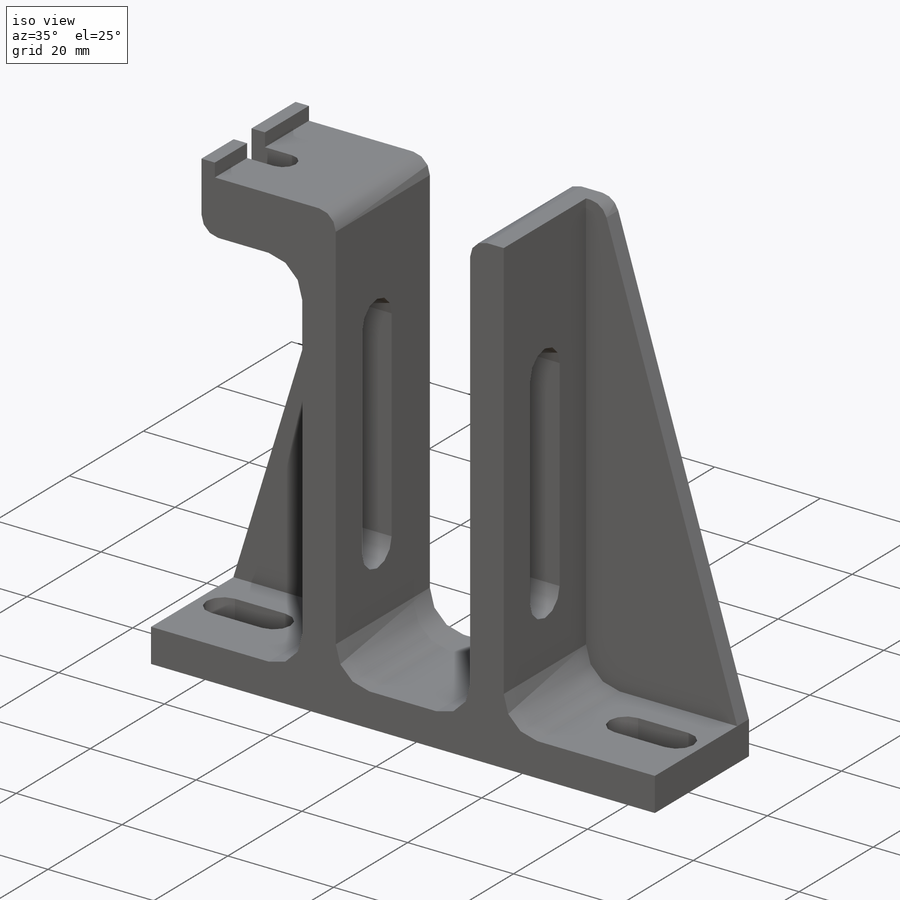
[diagram: iso view]
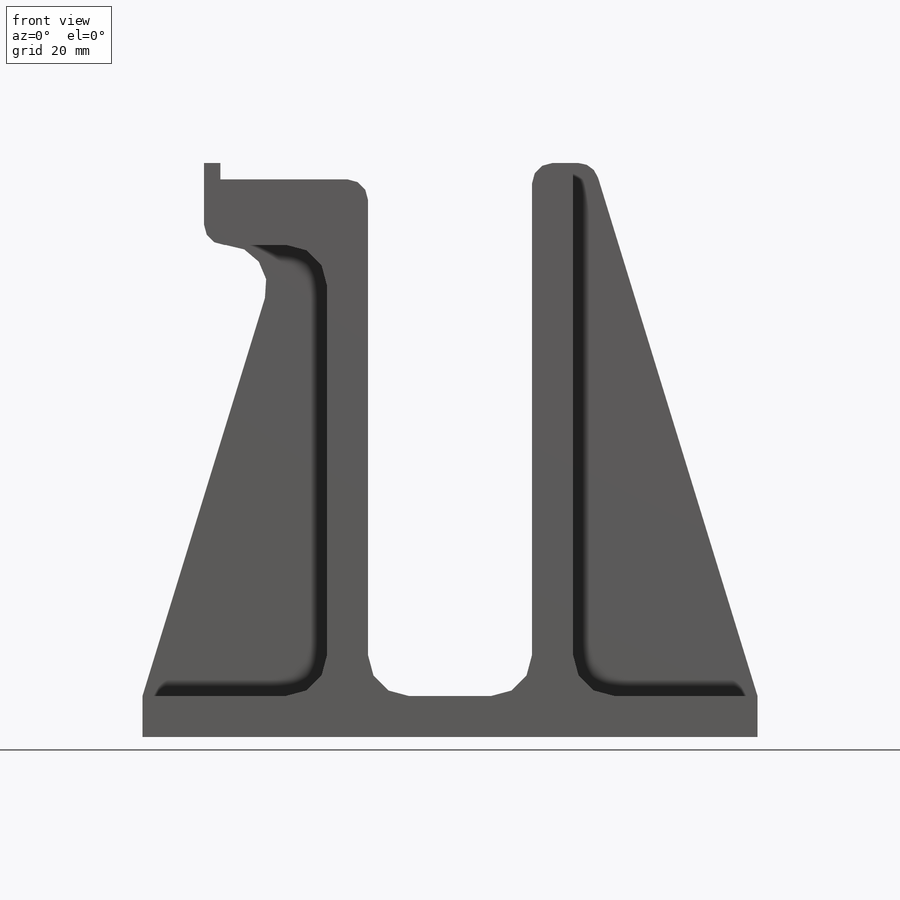
[diagram: front view]
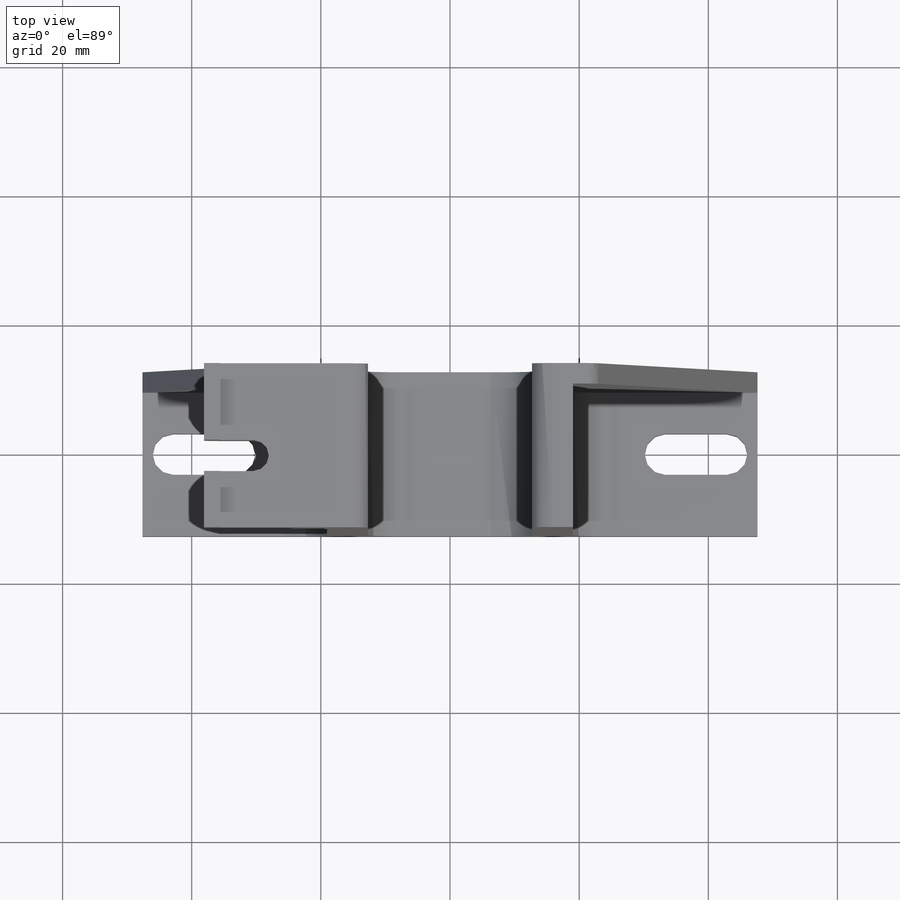
[diagram: top view]
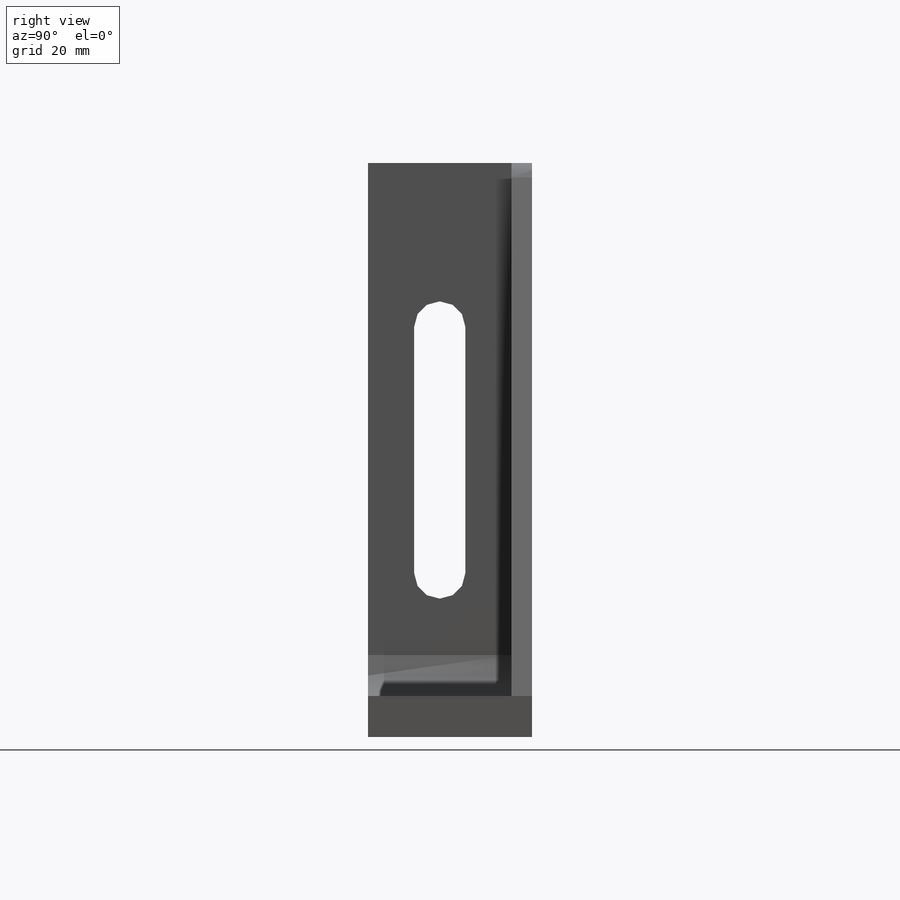
[diagram: right view]
SOLIDWORKS PART (.sldprt)
format: sldprt  version: not decoded by parser v0  size: 379,392 bytes
history: native  units: mm
features: sketch x7, cut_extrude x4, extrude x2, fillet x2, material x1, mirror x1 (+11 scaffold rows collapsed)
feature tree (28):
  scaffold x11  (default folders/planes/origin — collapsed)
  material  "6061-T6 (SS)"
  sketch  "Sketch1"  dims[c1.D1=95.25mm c1.D2=88.9mm c1.D3=6.35mm c1.D4=6.35mm c1.D5=25.4mm c1.D6=6.35mm c1.D7=~9.927985mm c2.D4=6.35mm]
  extrude  "Boss-Extrude1"  Depth=25.4mm
  sketch  "Sketch11"  dims[c1.D1=3.175mm c2.D1=3.175mm]
  mirror  "Mirror1"
  sketch  "Sketch4"  dims[c1.D1=7.9375mm c1.D2=38.1mm c1.D3=19.05mm c1.D4=19.05mm c2.D3=19.05mm]
  cut_extrude  "Cut-Extrude3"  [1 undecoded]
  sketch  "Sketch5"  dims[D1=6.35mm D2=9.525mm D3=6.35mm D4=9.525mm D5=85.725mm D6=0.0mm D7=3.175mm]
  cut_extrude  "Cut-Extrude4"  [1 undecoded]
  sketch  "Sketch6"  dims[D1=12.7mm]
  extrude  "Boss-Extrude2"  Depth=19.05mm
  sketch  "Sketch7"  dims[c1.D2=4.826mm c1.D1=17.78mm c2.D2=4.826mm c2.D3=12.7mm]
  cut_extrude  "Cut-Extrude5"  Depth=19.05mm
  sketch  "Sketch9"  dims[D1=2.54mm]
  cut_extrude  "Cut-Extrude6"  Depth=2.54mm
  fillet  "Fillet4"  Radius=3.175mm
  fillet  "Fillet5"  Radius=6.35mm
decode coverage: 13 of 16 modeling features carry decoded parameters
note: ~ marks probable driven/reference dimensions
note: 2 parameter values undecoded
note: suppression state not decoded; provenance and decode notes live in map.json
